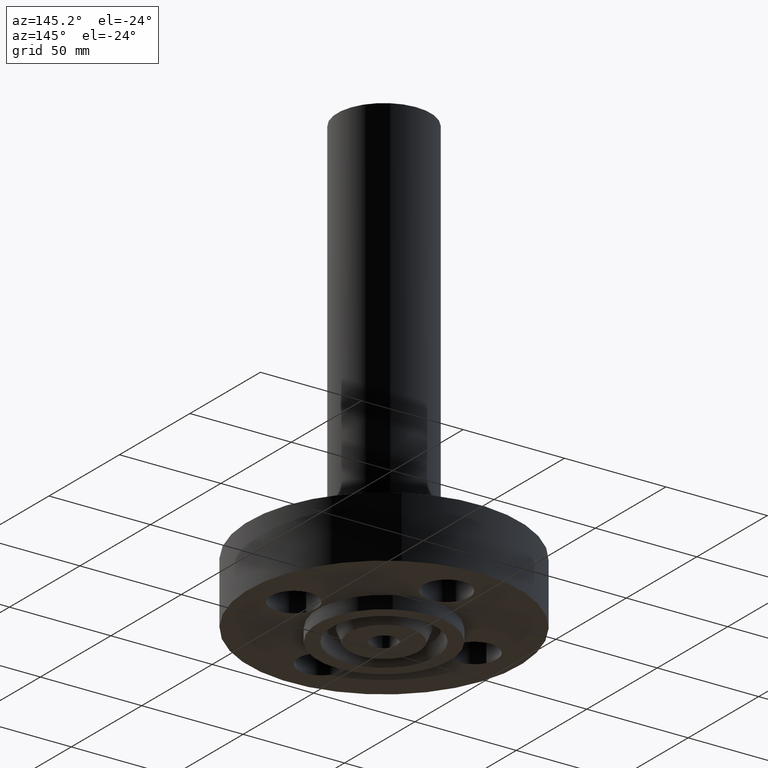
[diagram: clean part render]
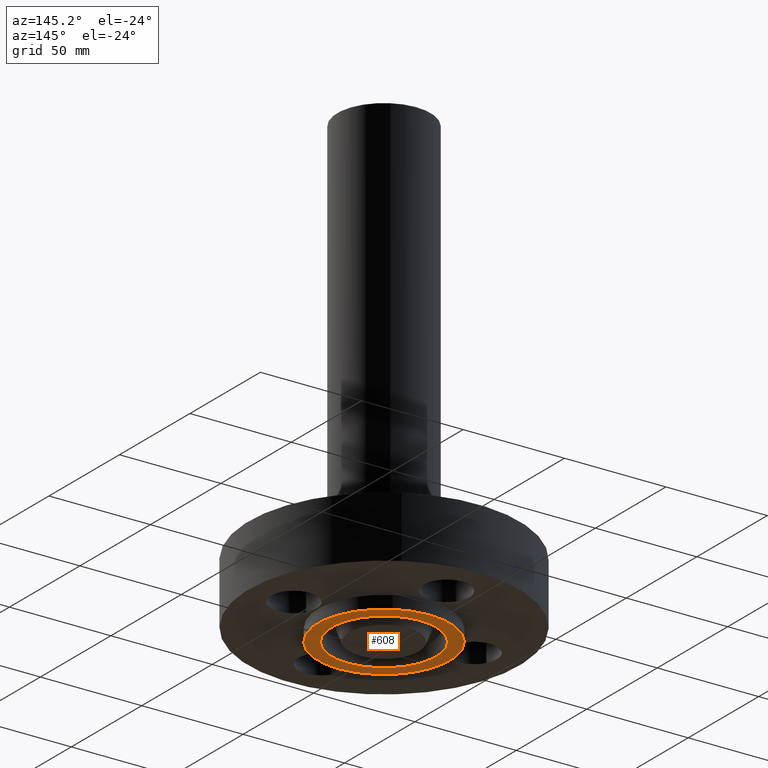
[diagram: same view with one face highlighted and labeled with its STEP entity id]
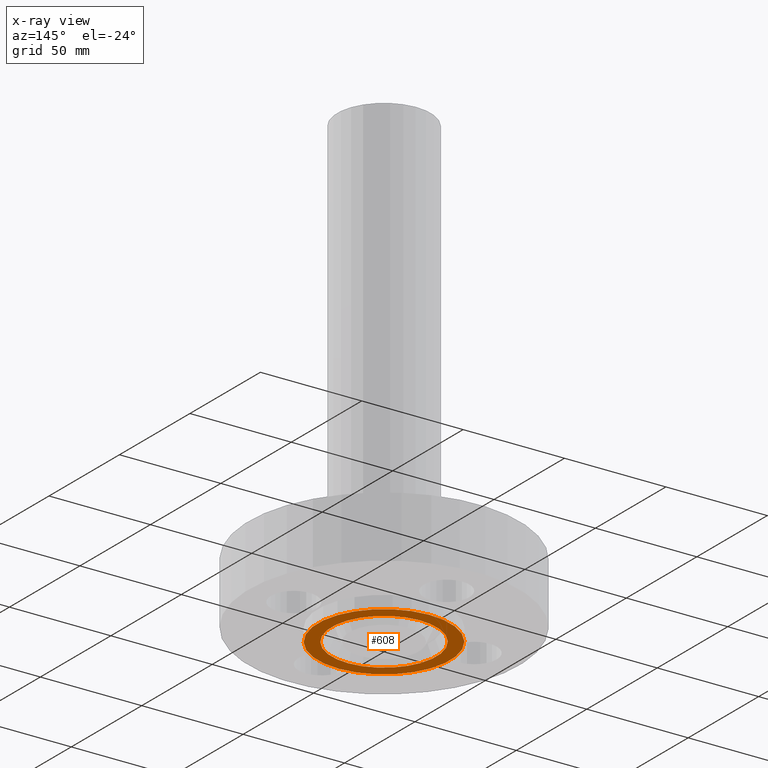
[diagram: x-ray of the same camera — body ghosted, the highlighted face saturated]
A machine part, auxiliary view. The second image highlights one B-rep face of the part: STEP entity #608.
The next image is the same camera in x-ray: the body ghosted, the highlighted face saturated — about 0% of this face is hidden behind the body in this view.
In plain terms, the highlighted planar face has unit normal (0, 0, -1).
Its self-contained STEP definition (entity closure, byte-faithful):
#366=AXIS2_PLACEMENT_3D('Plane Axis2P3D',#363,#364,#365) ;
#557=AXIS2_PLACEMENT_3D('Circle Axis2P3D',#555,#556,$) ;
#576=AXIS2_PLACEMENT_3D('Circle Axis2P3D',#574,#575,$) ;
#588=AXIS2_PLACEMENT_3D('Circle Axis2P3D',#586,#587,$) ;
#597=AXIS2_PLACEMENT_3D('Circle Axis2P3D',#595,#596,$) ;
#363=CARTESIAN_POINT('Axis2P3D Location',(0.,0.250000000001,-0.250000000001)) ;
#552=CARTESIAN_POINT('Vertex',(-0.487096347224,-0.891623882884,-0.250000000001)) ;
#555=CARTESIAN_POINT('Axis2P3D Location',(0.,0.,-0.250000000001)) ;
#559=CARTESIAN_POINT('Vertex',(0.487096347224,0.891623882884,-0.250000000001)) ;
#574=CARTESIAN_POINT('Axis2P3D Location',(0.,0.,-0.250000000001)) ;
#586=CARTESIAN_POINT('Axis2P3D Location',(0.,0.,-0.250000000001)) ;
#590=CARTESIAN_POINT('Vertex',(-0.614383827724,-1.12462205307,-0.250000000001)) ;
#592=CARTESIAN_POINT('Vertex',(0.614383827724,1.12462205307,-0.250000000001)) ;
#595=CARTESIAN_POINT('Axis2P3D Location',(0.,0.,-0.250000000001)) ;
#364=DIRECTION('Axis2P3D Direction',(0.,0.,-0.0393700787402)) ;
#365=DIRECTION('Axis2P3D XDirection',(0.0393700787402,0.,0.)) ;
#556=DIRECTION('Axis2P3D Direction',(0.,0.,-0.0393700787402)) ;
#575=DIRECTION('Axis2P3D Direction',(0.,0.,-0.0393700787402)) ;
#587=DIRECTION('Axis2P3D Direction',(0.,0.,-0.0393700787402)) ;
#596=DIRECTION('Axis2P3D Direction',(0.,0.,-0.0393700787402)) ;
#601=ORIENTED_EDGE('',*,*,#594,.T.) ;
#602=ORIENTED_EDGE('',*,*,#599,.T.) ;
#605=ORIENTED_EDGE('',*,*,#578,.F.) ;
#606=ORIENTED_EDGE('',*,*,#561,.F.) ;
#607=FACE_BOUND('',#604,.T.) ;
#608=ADVANCED_FACE('PartBody',(#603,#607),#367,.T.) ;
#558=CIRCLE('generated circle',#557,1.016) ;
#577=CIRCLE('generated circle',#576,1.016) ;
#589=CIRCLE('generated circle',#588,1.28150000001) ;
#598=CIRCLE('generated circle',#597,1.28150000001) ;
#561=EDGE_CURVE('',#553,#560,#558,.T.) ;
#578=EDGE_CURVE('',#560,#553,#577,.T.) ;
#594=EDGE_CURVE('',#591,#593,#589,.T.) ;
#599=EDGE_CURVE('',#593,#591,#598,.T.) ;
#600=EDGE_LOOP('',(#601,#602)) ;
#604=EDGE_LOOP('',(#605,#606)) ;
#603=FACE_OUTER_BOUND('',#600,.T.) ;
#367=PLANE('',#366) ;
#553=VERTEX_POINT('',#552) ;
#560=VERTEX_POINT('',#559) ;
#591=VERTEX_POINT('',#590) ;
#593=VERTEX_POINT('',#592) ;